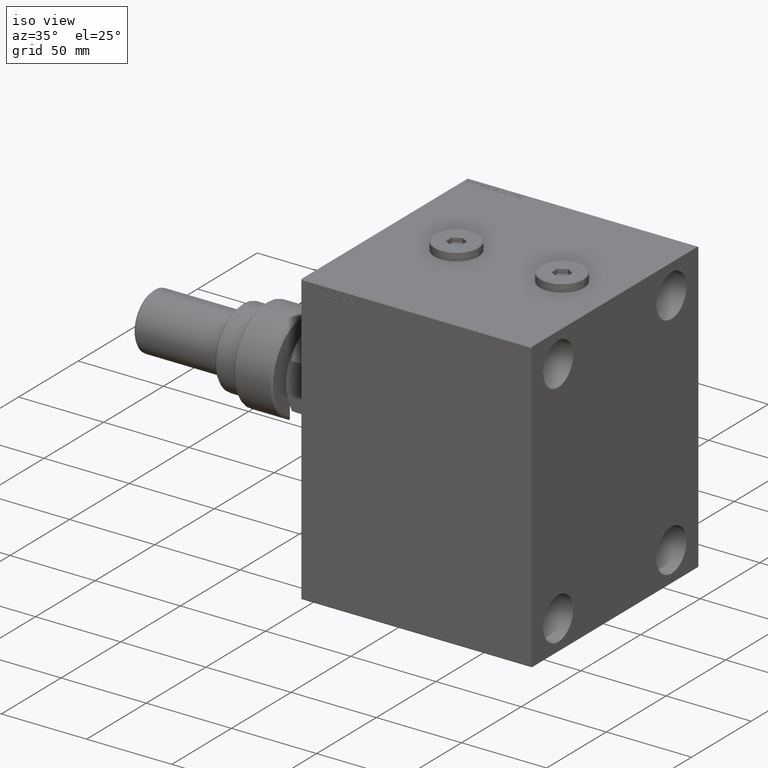
[diagram: clean part render]
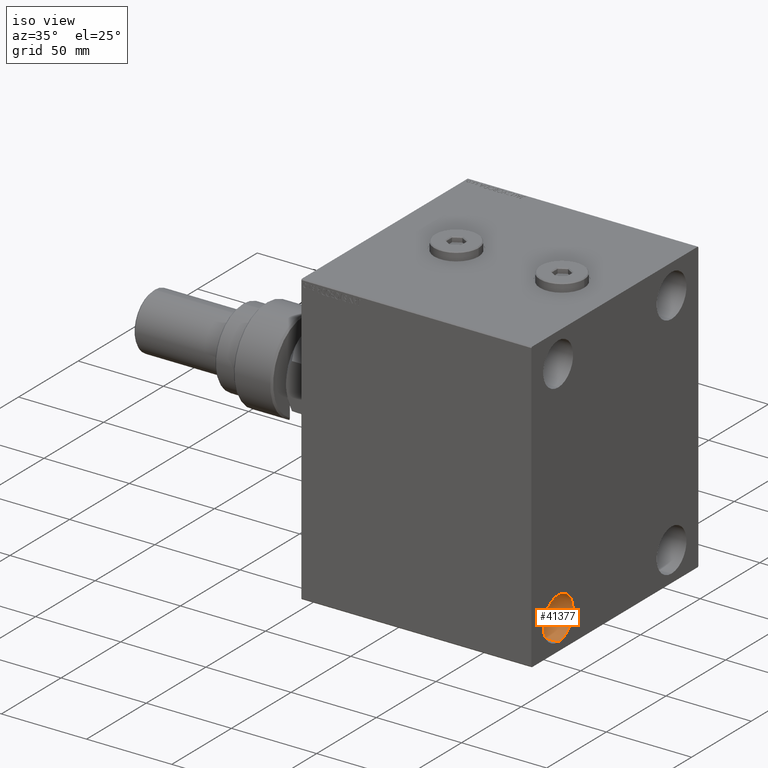
[diagram: same view with one face highlighted and labeled with its STEP entity id]
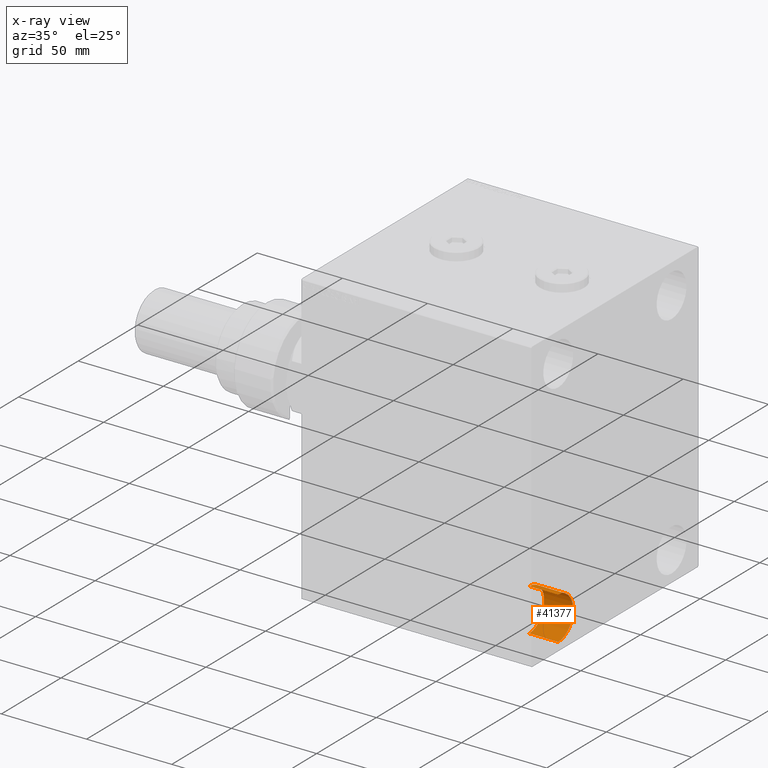
[diagram: x-ray of the same camera — body ghosted, the highlighted face saturated]
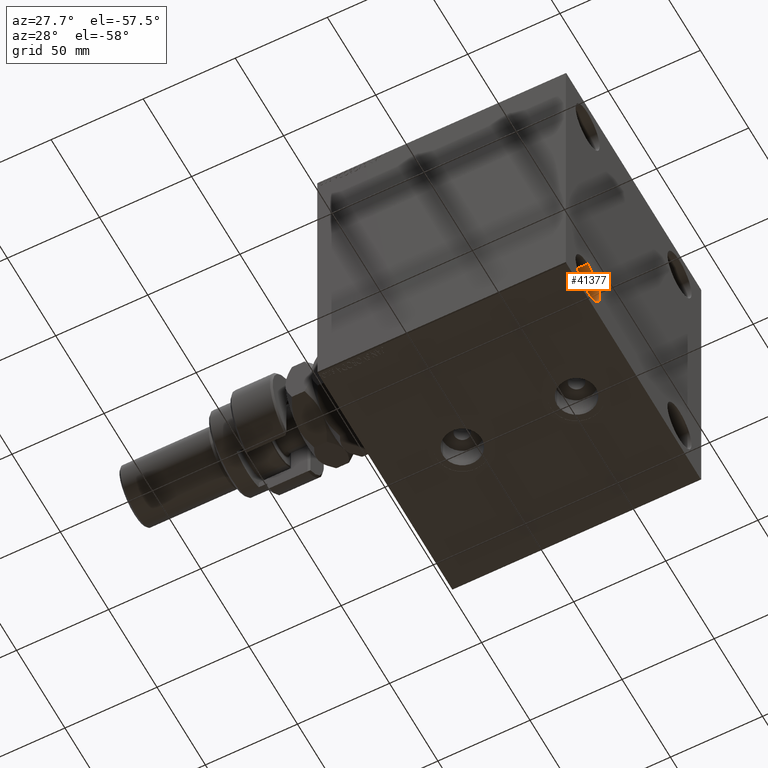
[diagram: same view with one face highlighted and labeled with its STEP entity id]
A machine part, iso view. The second image highlights one B-rep face of the part: STEP entity #41377.
The next image is the same camera in x-ray: the body ghosted, the highlighted face saturated — about 0% of this face is hidden behind the body in this view.
A second angle (auxiliary view) of the same face is appended — the face is thin or edge-on in the first view.
In plain terms, the highlighted cylindrical surface (edge-blend (fillet) strip) has radius 12.5 mm, axis along (1, 0, 0).
Its self-contained STEP definition (entity closure, byte-faithful):
#65 = VERTEX_POINT ( 'NONE', #5358 ) ;
#539 = VECTOR ( 'NONE', #28392, 1000.000000000000000 ) ;
#2919 = VERTEX_POINT ( 'NONE', #8276 ) ;
#3354 = LINE ( 'NONE', #43449, #539 ) ;
#4041 = DIRECTION ( 'NONE',  ( 0.000000000000000000, 0.000000000000000000, 1.000000000000000000 ) ) ;
#4722 = VERTEX_POINT ( 'NONE', #10193 ) ;
#5358 = CARTESIAN_POINT ( 'NONE',  ( 135.0000000000000000, -47.49999999999999289, -80.00000000000000000 ) ) ;
#7002 = ORIENTED_EDGE ( 'NONE', *, *, #12377, .T. ) ;
#8276 = CARTESIAN_POINT ( 'NONE',  ( 118.0000000000000142, -47.49999999999999289, -55.00000000000000711 ) ) ;
#9797 = ORIENTED_EDGE ( 'NONE', *, *, #39315, .T. ) ;
#10193 = CARTESIAN_POINT ( 'NONE',  ( 118.0000000000000142, -47.49999999999999289, -80.00000000000000000 ) ) ;
#12288 = DIRECTION ( 'NONE',  ( -1.000000000000000000, -0.000000000000000000, -0.000000000000000000 ) ) ;
#12377 = EDGE_CURVE ( 'NONE', #4722, #65, #16908, .T. ) ;
#13253 = DIRECTION ( 'NONE',  ( 0.000000000000000000, 0.000000000000000000, -1.000000000000000000 ) ) ;
#13750 = CYLINDRICAL_SURFACE ( 'NONE', #40661, 12.49999999999999645 ) ;
#16818 = EDGE_CURVE ( 'NONE', #2919, #47420, #3354, .T. ) ;
#16908 = LINE ( 'NONE', #35601, #22929 ) ;
#17612 = EDGE_LOOP ( 'NONE', ( #35802, #9797, #7002, #28082 ) ) ;
#17714 = CIRCLE ( 'NONE', #20801, 12.49999999999999645 ) ;
#18112 = CIRCLE ( 'NONE', #44494, 12.49999999999999645 ) ;
#20801 = AXIS2_PLACEMENT_3D ( 'NONE', #44811, #30700, #23409 ) ;
#21031 = DIRECTION ( 'NONE',  ( 1.000000000000000000, -0.000000000000000000, -0.000000000000000000 ) ) ;
#22024 = EDGE_CURVE ( 'NONE', #47420, #65, #17714, .T. ) ;
#22929 = VECTOR ( 'NONE', #21031, 1000.000000000000000 ) ;
#23409 = DIRECTION ( 'NONE',  ( 0.000000000000000000, 0.000000000000000000, 1.000000000000000000 ) ) ;
#23428 = CARTESIAN_POINT ( 'NONE',  ( 135.0000000000000000, -47.49999999999999289, -55.00000000000000711 ) ) ;
#27600 = DIRECTION ( 'NONE',  ( 1.000000000000000000, -0.000000000000000000, -0.000000000000000000 ) ) ;
#28082 = ORIENTED_EDGE ( 'NONE', *, *, #22024, .F. ) ;
#28392 = DIRECTION ( 'NONE',  ( 1.000000000000000000, -0.000000000000000000, -0.000000000000000000 ) ) ;
#30700 = DIRECTION ( 'NONE',  ( -1.000000000000000000, -0.000000000000000000, -0.000000000000000000 ) ) ;
#35601 = CARTESIAN_POINT ( 'NONE',  ( 118.0000000000000142, -47.49999999999999289, -80.00000000000000000 ) ) ;
#35802 = ORIENTED_EDGE ( 'NONE', *, *, #16818, .F. ) ;
#37094 = CARTESIAN_POINT ( 'NONE',  ( 118.0000000000000142, -47.49999999999999289, -67.50000000000000000 ) ) ;
#39315 = EDGE_CURVE ( 'NONE', #2919, #4722, #18112, .T. ) ;
#40661 = AXIS2_PLACEMENT_3D ( 'NONE', #43388, #27600, #13253 ) ;
#41377 = ADVANCED_FACE ( 'NONE', ( #42656 ), #13750, .F. ) ;
#42656 = FACE_OUTER_BOUND ( 'NONE', #17612, .T. ) ;
#43388 = CARTESIAN_POINT ( 'NONE',  ( 118.0000000000000142, -47.49999999999999289, -67.50000000000000000 ) ) ;
#43449 = CARTESIAN_POINT ( 'NONE',  ( 118.0000000000000142, -47.49999999999999289, -55.00000000000000711 ) ) ;
#44494 = AXIS2_PLACEMENT_3D ( 'NONE', #37094, #12288, #4041 ) ;
#44811 = CARTESIAN_POINT ( 'NONE',  ( 135.0000000000000000, -47.49999999999999289, -67.50000000000000000 ) ) ;
#47420 = VERTEX_POINT ( 'NONE', #23428 ) ;